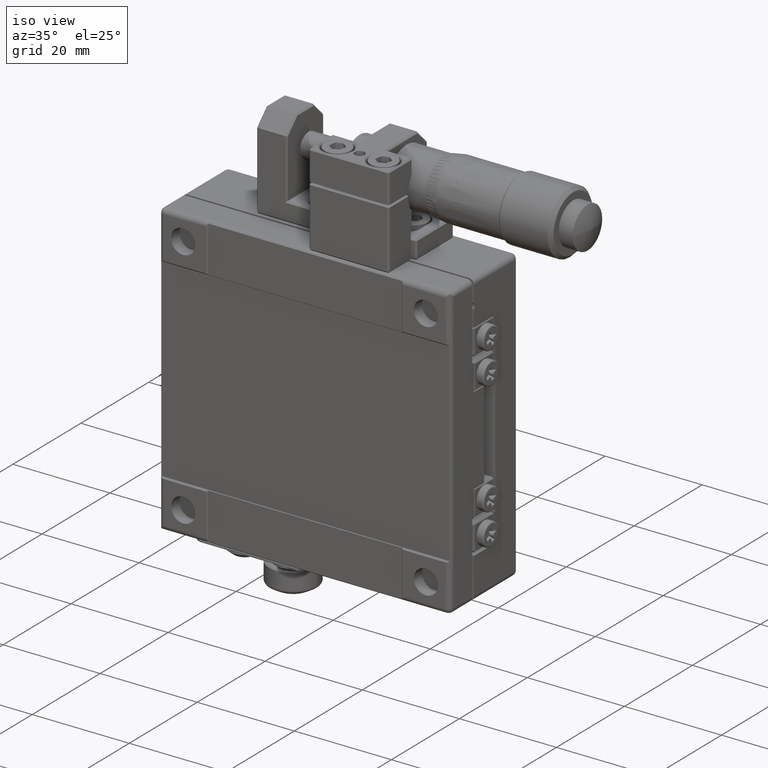
[diagram: clean part render]
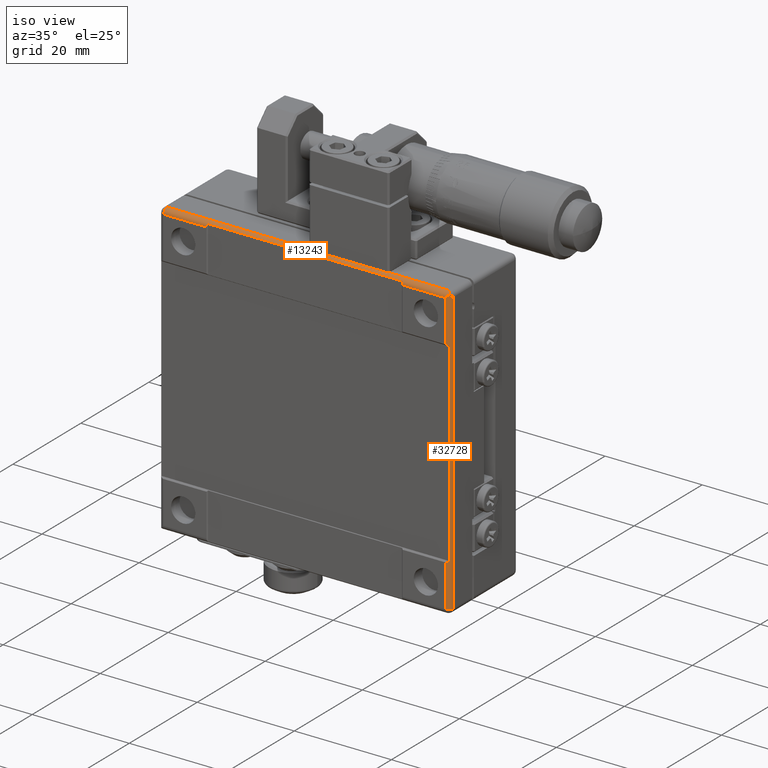
[diagram: same view with one multi-face feature highlighted, each face labeled with its STEP entity id]
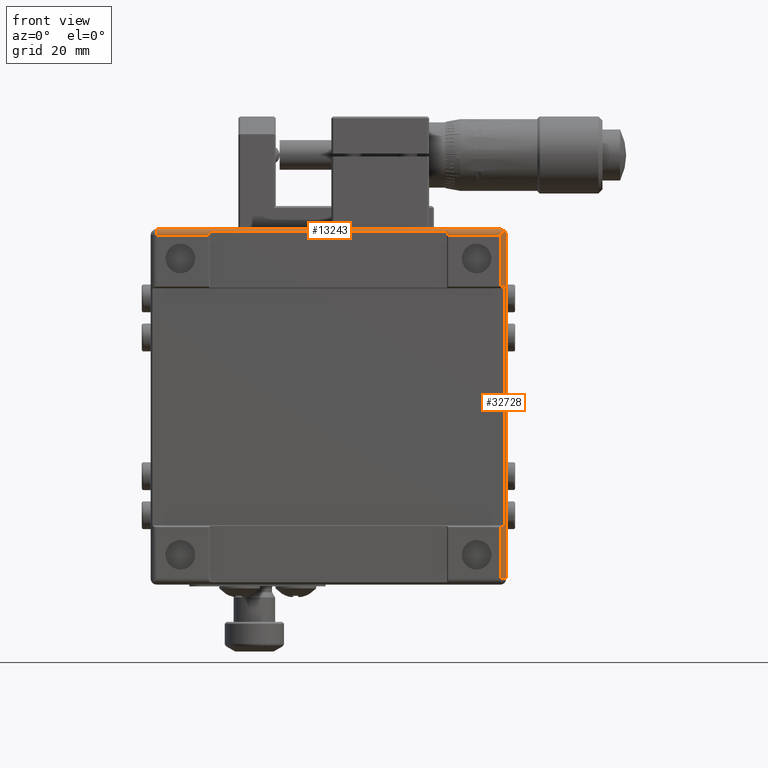
[diagram: same view with one multi-face feature highlighted, each face labeled with its STEP entity id]
A machine part, iso view. The highlighted faces form ONE feature: a constant-radius fillet chain: 2 tangent blend faces with common blend radius 1 mm. The faces share edges in the B-rep.
A second angle (front view) of the same feature is appended — it is thin or edge-on in the first view.
Their STEP definitions:
[1] entity #32728 (Cylinder):
#450 =( BOUNDED_CURVE ( )  B_SPLINE_CURVE ( 3, ( #6120, #52358, #14209, #6379 ),
 .UNSPECIFIED., .F., .T. ) 
 B_SPLINE_CURVE_WITH_KNOTS ( ( 4, 4 ),
 ( 3.926990816987240063, 4.712388980384689674 ),
 .UNSPECIFIED. ) 
 CURVE ( )  GEOMETRIC_REPRESENTATION_ITEM ( )  RATIONAL_B_SPLINE_CURVE ( ( 1.000000000000000000, 0.9492530216741910110, 0.9492530216741910110, 1.000000000000000000 ) ) 
 REPRESENTATION_ITEM ( '' )  );
#757 = LINE ( 'NONE', #9100, #16995 ) ;
#1023 = DIRECTION ( 'NONE',  ( 0.000000000000000000, 4.678643490962819868E-17, 1.000000000000000000 ) ) ;
#1397 = DIRECTION ( 'NONE',  ( 1.000000000000000000, 0.000000000000000000, 0.000000000000000000 ) ) ;
#1776 = VERTEX_POINT ( 'NONE', #12703 ) ;
#1814 = CARTESIAN_POINT ( 'NONE',  ( 30.37353433835844996, -10.39363484087102130, 24.64999999999999858 ) ) ;
#5026 = CARTESIAN_POINT ( 'NONE',  ( 30.64590476188642043, -10.39363484087103018, -20.30000000000000071 ) ) ;
#5035 = DIRECTION ( 'NONE',  ( 0.000000000000000000, 4.678643490962819868E-17, 1.000000000000000000 ) ) ;
#6120 = CARTESIAN_POINT ( 'NONE',  ( 31.08064111954500319, -10.10074162205756032, 29.70710678118654968 ) ) ;
#6379 = CARTESIAN_POINT ( 'NONE',  ( 31.37353433835844640, -9.393634840871019520, 29.00000000000000000 ) ) ;
#6687 = ORIENTED_EDGE ( 'NONE', *, *, #41910, .F. ) ;
#6949 =( BOUNDED_CURVE ( )  B_SPLINE_CURVE ( 3, ( #43692, #22540, #18372, #27266 ),
 .UNSPECIFIED., .F., .T. ) 
 B_SPLINE_CURVE_WITH_KNOTS ( ( 4, 4 ),
 ( 1.570796326794895004, 2.356194490192344837 ),
 .UNSPECIFIED. ) 
 CURVE ( )  GEOMETRIC_REPRESENTATION_ITEM ( )  RATIONAL_B_SPLINE_CURVE ( ( 1.000000000000000000, 0.9492530216741910110, 0.9492530216741910110, 1.000000000000000000 ) ) 
 REPRESENTATION_ITEM ( '' )  );
#6951 = CARTESIAN_POINT ( 'NONE',  ( 31.08064111954500319, -10.10074162205756032, 29.70710678118654968 ) ) ;
#7042 = ORIENTED_EDGE ( 'NONE', *, *, #49805, .T. ) ;
#8111 = VECTOR ( 'NONE', #5035, 1000.000000000000000 ) ;
#8354 = CARTESIAN_POINT ( 'NONE',  ( 31.08767718121274726, -10.09363484087102059, -20.00000000000000000 ) ) ;
#9100 = CARTESIAN_POINT ( 'NONE',  ( 30.37353433835844996, -10.39363484087102130, -20.29999999999999716 ) ) ;
#9840 = EDGE_CURVE ( 'NONE', #1776, #30187, #42429, .T. ) ;
#10680 = CARTESIAN_POINT ( 'NONE',  ( 30.37353433835844996, -10.39363484087102130, 20.29999999999999716 ) ) ;
#10759 = ORIENTED_EDGE ( 'NONE', *, *, #35876, .F. ) ;
#12564 = CARTESIAN_POINT ( 'NONE',  ( 31.08767718121274726, -10.09363484087102059, 20.00000000000000000 ) ) ;
#12703 = CARTESIAN_POINT ( 'NONE',  ( 30.37353433835844996, -10.39363484087102130, -20.29999999999999716 ) ) ;
#13242 = VERTEX_POINT ( 'NONE', #10680 ) ;
#13359 = LINE ( 'NONE', #26181, #8111 ) ;
#14209 = CARTESIAN_POINT ( 'NONE',  ( 31.37353433835845351, -9.662395942935711801, 29.26876110206470827 ) ) ;
#14305 = CARTESIAN_POINT ( 'NONE',  ( 30.37353433835844996, -10.39363484087102130, 29.00000000000000000 ) ) ;
#14704 = EDGE_CURVE ( 'NONE', #51663, #39371, #450, .T. ) ;
#14920 = LINE ( 'NONE', #1814, #20771 ) ;
#14973 = VECTOR ( 'NONE', #50606, 1000.000000000000000 ) ;
#15474 = CYLINDRICAL_SURFACE ( 'NONE', #25446, 1.000000000000000888 ) ;
#16748 = EDGE_LOOP ( 'NONE', ( #18450, #35369, #7042, #10759, #17995, #6687, #36198, #31444, #39037 ) ) ;
#16995 = VECTOR ( 'NONE', #1023, 1000.000000000000000 ) ;
#17142 = CIRCLE ( 'NONE', #52710, 0.9999999999999974465 ) ;
#17995 = ORIENTED_EDGE ( 'NONE', *, *, #14704, .F. ) ;
#18372 = CARTESIAN_POINT ( 'NONE',  ( 30.89059832175586351, -10.29078441984666981, 29.51706398339743487 ) ) ;
#18450 = ORIENTED_EDGE ( 'NONE', *, *, #9840, .F. ) ;
#18572 = DIRECTION ( 'NONE',  ( 0.000000000000000000, -1.000000000000000000, 0.000000000000000000 ) ) ;
#18813 = DIRECTION ( 'NONE',  ( 0.000000000000000000, 4.678643490962819868E-17, 1.000000000000000000 ) ) ;
#20771 = VECTOR ( 'NONE', #18813, 1000.000000000000000 ) ;
#21489 = CARTESIAN_POINT ( 'NONE',  ( 30.37353433835844996, -10.39363484087102130, 20.29999999999999716 ) ) ;
#21937 = LINE ( 'NONE', #33618, #14973 ) ;
#22540 = CARTESIAN_POINT ( 'NONE',  ( 30.64229544042313691, -10.39363484087101419, 29.26876110206470827 ) ) ;
#22972 = CARTESIAN_POINT ( 'NONE',  ( 31.37353433835844640, -9.393634840871030178, -29.00000000000000000 ) ) ;
#25059 = EDGE_CURVE ( 'NONE', #51138, #1776, #757, .T. ) ;
#25446 = AXIS2_PLACEMENT_3D ( 'NONE', #32460, #36361, #18572 ) ;
#26181 = CARTESIAN_POINT ( 'NONE',  ( 31.08767718121274726, -10.09363484087102059, -20.00000000000000000 ) ) ;
#27266 = CARTESIAN_POINT ( 'NONE',  ( 31.08064111954500319, -10.10074162205756032, 29.70710678118654968 ) ) ;
#29570 = CARTESIAN_POINT ( 'NONE',  ( 30.89701788474322441, -10.28814622943870738, 20.19451138856768324 ) ) ;
#30187 = VERTEX_POINT ( 'NONE', #45253 ) ;
#31444 = ORIENTED_EDGE ( 'NONE', *, *, #34308, .F. ) ;
#32460 = CARTESIAN_POINT ( 'NONE',  ( 30.37353433835844996, -9.393634840871019520, 30.00000000000000000 ) ) ;
#32728 = ADVANCED_FACE ( 'NONE', ( #35810 ), #15474, .T. ) ;
#33618 = CARTESIAN_POINT ( 'NONE',  ( 31.37353433835844640, -9.393634840871030178, -29.00000000000000000 ) ) ;
#33838 = CARTESIAN_POINT ( 'NONE',  ( 30.37353433835844996, -10.39363484087102130, -29.00000000000000000 ) ) ;
#34308 = EDGE_CURVE ( 'NONE', #37573, #13242, #47133, .T. ) ;
#34742 = VERTEX_POINT ( 'NONE', #14305 ) ;
#35369 = ORIENTED_EDGE ( 'NONE', *, *, #25059, .F. ) ;
#35810 = FACE_OUTER_BOUND ( 'NONE', #16748, .T. ) ;
#35876 = EDGE_CURVE ( 'NONE', #39371, #54857, #21937, .T. ) ;
#36198 = ORIENTED_EDGE ( 'NONE', *, *, #43603, .F. ) ;
#36361 = DIRECTION ( 'NONE',  ( 0.000000000000000000, 0.000000000000000000, 1.000000000000000000 ) ) ;
#37573 = VERTEX_POINT ( 'NONE', #51653 ) ;
#39010 = CARTESIAN_POINT ( 'NONE',  ( 30.37353433835844996, -9.393634840871030178, -29.00000000000000000 ) ) ;
#39037 = ORIENTED_EDGE ( 'NONE', *, *, #47964, .F. ) ;
#39371 = VERTEX_POINT ( 'NONE', #40861 ) ;
#39543 = DIRECTION ( 'NONE',  ( 0.000000000000000000, 0.000000000000000000, 1.000000000000000000 ) ) ;
#40861 = CARTESIAN_POINT ( 'NONE',  ( 31.37353433835844640, -9.393634840871019520, 29.00000000000000000 ) ) ;
#41910 = EDGE_CURVE ( 'NONE', #34742, #51663, #6949, .T. ) ;
#42429 =( BOUNDED_CURVE ( )  B_SPLINE_CURVE ( 3, ( #50672, #5026, #43174, #8354 ),
 .UNSPECIFIED., .F., .T. ) 
 B_SPLINE_CURVE_WITH_KNOTS ( ( 4, 4 ),
 ( 3.141592653589795336, 3.936991483773935041 ),
 .UNSPECIFIED. ) 
 CURVE ( )  GEOMETRIC_REPRESENTATION_ITEM ( )  RATIONAL_B_SPLINE_CURVE ( ( 1.000000000000000000, 0.9479696304861919831, 0.9479696304861919831, 1.000000000000000000 ) ) 
 REPRESENTATION_ITEM ( '' )  );
#42659 = CARTESIAN_POINT ( 'NONE',  ( 30.64590476188642043, -10.39363484087103018, 20.30000000000000071 ) ) ;
#43174 = CARTESIAN_POINT ( 'NONE',  ( 30.89701788474322441, -10.28814622943870738, -20.19451138856768324 ) ) ;
#43603 = EDGE_CURVE ( 'NONE', #13242, #34742, #14920, .T. ) ;
#43692 = CARTESIAN_POINT ( 'NONE',  ( 30.37353433835844996, -10.39363484087102130, 29.00000000000000000 ) ) ;
#45253 = CARTESIAN_POINT ( 'NONE',  ( 31.08767718121274726, -10.09363484087102059, -20.00000000000000000 ) ) ;
#47133 =( BOUNDED_CURVE ( )  B_SPLINE_CURVE ( 3, ( #12564, #29570, #42659, #21489 ),
 .UNSPECIFIED., .F., .T. ) 
 B_SPLINE_CURVE_WITH_KNOTS ( ( 4, 4 ),
 ( 5.487786476995439422, 6.283185307179590673 ),
 .UNSPECIFIED. ) 
 CURVE ( )  GEOMETRIC_REPRESENTATION_ITEM ( )  RATIONAL_B_SPLINE_CURVE ( ( 1.000000000000000000, 0.9479696304861919831, 0.9479696304861919831, 1.000000000000000000 ) ) 
 REPRESENTATION_ITEM ( '' )  );
#47964 = EDGE_CURVE ( 'NONE', #30187, #37573, #13359, .T. ) ;
#49805 = EDGE_CURVE ( 'NONE', #51138, #54857, #17142, .T. ) ;
#50606 = DIRECTION ( 'NONE',  ( 0.000000000000000000, -4.678643490962819868E-17, -1.000000000000000000 ) ) ;
#50672 = CARTESIAN_POINT ( 'NONE',  ( 30.37353433835844996, -10.39363484087102130, -20.29999999999999716 ) ) ;
#51138 = VERTEX_POINT ( 'NONE', #33838 ) ;
#51653 = CARTESIAN_POINT ( 'NONE',  ( 31.08767718121274726, -10.09363484087102059, 20.00000000000000000 ) ) ;
#51663 = VERTEX_POINT ( 'NONE', #6951 ) ;
#52358 = CARTESIAN_POINT ( 'NONE',  ( 31.27068391733412511, -9.910698824268449059, 29.51706398339743487 ) ) ;
#52710 = AXIS2_PLACEMENT_3D ( 'NONE', #39010, #39543, #1397 ) ;
#54857 = VERTEX_POINT ( 'NONE', #22972 ) ;
[2] entity #13243 (Cylinder):
#383 = VERTEX_POINT ( 'NONE', #1073 ) ;
#569 = VERTEX_POINT ( 'NONE', #9090 ) ;
#681 = ORIENTED_EDGE ( 'NONE', *, *, #36954, .F. ) ;
#875 = CARTESIAN_POINT ( 'NONE',  ( -18.82646566164153157, -10.39363484087101597, 29.21828633383316998 ) ) ;
#1073 = CARTESIAN_POINT ( 'NONE',  ( 18.07353433835844925, -9.393634840871019520, 30.00000000000000000 ) ) ;
#2132 = VECTOR ( 'NONE', #27496, 1000.000000000000000 ) ;
#2416 = EDGE_CURVE ( 'NONE', #4835, #31603, #51368, .T. ) ;
#3227 = DIRECTION ( 'NONE',  ( -1.000000000000000000, 0.000000000000000000, 0.000000000000000000 ) ) ;
#4227 = CARTESIAN_POINT ( 'NONE',  ( -27.62646566164155004, -10.39363484087102130, 29.00000000000000000 ) ) ;
#4642 = CARTESIAN_POINT ( 'NONE',  ( 31.08064111954500319, -10.10074162205756032, 29.70710678118654968 ) ) ;
#4835 = VERTEX_POINT ( 'NONE', #30102 ) ;
#4933 = CIRCLE ( 'NONE', #50284, 1.000000000000000888 ) ;
#5073 = CARTESIAN_POINT ( 'NONE',  ( -18.62646566164155360, -10.19363484087102023, 29.60000000000000142 ) ) ;
#6132 =( BOUNDED_CURVE ( )  B_SPLINE_CURVE ( 3, ( #5073, #39295, #875, #22604 ),
 .UNSPECIFIED., .F., .T. ) 
 B_SPLINE_CURVE_WITH_KNOTS ( ( 4, 4 ),
 ( 5.639684198386309966, 6.283185307179590673 ),
 .UNSPECIFIED. ) 
 CURVE ( )  GEOMETRIC_REPRESENTATION_ITEM ( )  RATIONAL_B_SPLINE_CURVE ( ( 1.000000000000000000, 0.9657888653670100298, 0.9657888653670100298, 1.000000000000000000 ) ) 
 REPRESENTATION_ITEM ( '' )  );
#6505 = EDGE_CURVE ( 'NONE', #34742, #4835, #43940, .T. ) ;
#6949 =( BOUNDED_CURVE ( )  B_SPLINE_CURVE ( 3, ( #43692, #22540, #18372, #27266 ),
 .UNSPECIFIED., .F., .T. ) 
 B_SPLINE_CURVE_WITH_KNOTS ( ( 4, 4 ),
 ( 1.570796326794895004, 2.356194490192344837 ),
 .UNSPECIFIED. ) 
 CURVE ( )  GEOMETRIC_REPRESENTATION_ITEM ( )  RATIONAL_B_SPLINE_CURVE ( ( 1.000000000000000000, 0.9492530216741910110, 0.9492530216741910110, 1.000000000000000000 ) ) 
 REPRESENTATION_ITEM ( '' )  );
#6951 = CARTESIAN_POINT ( 'NONE',  ( 31.08064111954500319, -10.10074162205756032, 29.70710678118654968 ) ) ;
#7883 = VERTEX_POINT ( 'NONE', #14293 ) ;
#8212 = EDGE_CURVE ( 'NONE', #569, #38611, #17031, .T. ) ;
#8251 = EDGE_CURVE ( 'NONE', #569, #28131, #4933, .T. ) ;
#9090 = CARTESIAN_POINT ( 'NONE',  ( -27.62646566164155004, -9.393634840871019520, 30.00000000000000000 ) ) ;
#9222 = CARTESIAN_POINT ( 'NONE',  ( -18.82646566164155288, -10.39363484087102130, 29.00000000000000000 ) ) ;
#9229 = DIRECTION ( 'NONE',  ( 0.000000000000000000, 0.000000000000000000, -1.000000000000000000 ) ) ;
#9642 = CARTESIAN_POINT ( 'NONE',  ( 30.89059832175588838, -9.910698824268450835, 29.89714957897566450 ) ) ;
#10982 = ORIENTED_EDGE ( 'NONE', *, *, #14765, .F. ) ;
#11251 = FACE_OUTER_BOUND ( 'NONE', #45939, .T. ) ;
#12611 = DIRECTION ( 'NONE',  ( 0.000000000000000000, 0.000000000000000000, 1.000000000000000000 ) ) ;
#12982 = VECTOR ( 'NONE', #24773, 1000.000000000000000 ) ;
#13148 = DIRECTION ( 'NONE',  ( 1.000000000000000000, 0.000000000000000000, 0.000000000000000000 ) ) ;
#13243 = ADVANCED_FACE ( 'NONE', ( #11251 ), #27686, .T. ) ;
#14293 = CARTESIAN_POINT ( 'NONE',  ( -18.62646566164155360, -10.19363484087102023, 29.60000000000000142 ) ) ;
#14305 = CARTESIAN_POINT ( 'NONE',  ( 30.37353433835844996, -10.39363484087102130, 29.00000000000000000 ) ) ;
#14713 = CARTESIAN_POINT ( 'NONE',  ( 21.57353433835844569, -10.39363484087102130, 29.00000000000000000 ) ) ;
#14765 = EDGE_CURVE ( 'NONE', #39004, #28131, #45100, .T. ) ;
#14921 = CARTESIAN_POINT ( 'NONE',  ( 21.37353433835844996, -10.19363484087102023, 29.60000000000000142 ) ) ;
#17031 = LINE ( 'NONE', #51303, #45829 ) ;
#17376 = DIRECTION ( 'NONE',  ( 1.000000000000000000, 0.000000000000000000, 0.000000000000000000 ) ) ;
#17777 = CARTESIAN_POINT ( 'NONE',  ( 26.47353433835844783, -10.39363484087102130, 29.00000000000000000 ) ) ;
#18372 = CARTESIAN_POINT ( 'NONE',  ( 30.89059832175586351, -10.29078441984666981, 29.51706398339743487 ) ) ;
#19177 = CARTESIAN_POINT ( 'NONE',  ( 21.57353433835844214, -10.39363484087100353, 29.21828633383319129 ) ) ;
#19282 = EDGE_CURVE ( 'NONE', #38611, #383, #30441, .T. ) ;
#19478 = ORIENTED_EDGE ( 'NONE', *, *, #22032, .F. ) ;
#20663 = LINE ( 'NONE', #37633, #47652 ) ;
#20964 = CARTESIAN_POINT ( 'NONE',  ( -27.62646566164155004, -9.393634840871019520, 29.00000000000000000 ) ) ;
#21199 = EDGE_CURVE ( 'NONE', #383, #49326, #20663, .T. ) ;
#21546 = CARTESIAN_POINT ( 'NONE',  ( 31.37353433835844640, -9.393634840871019520, 30.00000000000000000 ) ) ;
#22032 = EDGE_CURVE ( 'NONE', #7883, #39004, #6132, .T. ) ;
#22035 = ORIENTED_EDGE ( 'NONE', *, *, #8212, .F. ) ;
#22540 = CARTESIAN_POINT ( 'NONE',  ( 30.64229544042313691, -10.39363484087101419, 29.26876110206470827 ) ) ;
#22604 = CARTESIAN_POINT ( 'NONE',  ( -18.82646566164155288, -10.39363484087102130, 29.00000000000000000 ) ) ;
#24773 = DIRECTION ( 'NONE',  ( -1.000000000000000000, 0.000000000000000000, 0.000000000000000000 ) ) ;
#25010 =( BOUNDED_CURVE ( )  B_SPLINE_CURVE ( 3, ( #38327, #26376, #9642, #4642 ),
 .UNSPECIFIED., .F., .T. ) 
 B_SPLINE_CURVE_WITH_KNOTS ( ( 4, 4 ),
 ( 1.570796326794895004, 2.356194490192339952 ),
 .UNSPECIFIED. ) 
 CURVE ( )  GEOMETRIC_REPRESENTATION_ITEM ( )  RATIONAL_B_SPLINE_CURVE ( ( 1.000000000000000000, 0.9492530216741920102, 0.9492530216741920102, 1.000000000000000000 ) ) 
 REPRESENTATION_ITEM ( '' )  );
#25839 = ORIENTED_EDGE ( 'NONE', *, *, #41910, .T. ) ;
#26376 = CARTESIAN_POINT ( 'NONE',  ( 30.64229544042315823, -9.662395942935702919, 29.99999999999998934 ) ) ;
#27266 = CARTESIAN_POINT ( 'NONE',  ( 31.08064111954500319, -10.10074162205756032, 29.70710678118654968 ) ) ;
#27496 = DIRECTION ( 'NONE',  ( -1.000000000000000000, 0.000000000000000000, 0.000000000000000000 ) ) ;
#27686 = CYLINDRICAL_SURFACE ( 'NONE', #48492, 1.000000000000000888 ) ;
#28131 = VERTEX_POINT ( 'NONE', #4227 ) ;
#28851 = CARTESIAN_POINT ( 'NONE',  ( 21.37353433835844996, -10.19363484087102023, 29.60000000000000142 ) ) ;
#29847 = ORIENTED_EDGE ( 'NONE', *, *, #30026, .F. ) ;
#30026 = EDGE_CURVE ( 'NONE', #49326, #51663, #25010, .T. ) ;
#30102 = CARTESIAN_POINT ( 'NONE',  ( 21.57353433835844569, -10.39363484087102130, 29.00000000000000000 ) ) ;
#30312 = VECTOR ( 'NONE', #3227, 1000.000000000000000 ) ;
#30390 = DIRECTION ( 'NONE',  ( 1.000000000000000000, 0.000000000000000000, 0.000000000000000000 ) ) ;
#30441 = LINE ( 'NONE', #21546, #33443 ) ;
#31603 = VERTEX_POINT ( 'NONE', #14921 ) ;
#31994 = CARTESIAN_POINT ( 'NONE',  ( 31.37353433835844640, -10.39363484087102130, 29.00000000000000000 ) ) ;
#33443 = VECTOR ( 'NONE', #17376, 1000.000000000000000 ) ;
#33771 = ORIENTED_EDGE ( 'NONE', *, *, #2416, .F. ) ;
#34742 = VERTEX_POINT ( 'NONE', #14305 ) ;
#34749 = ORIENTED_EDGE ( 'NONE', *, *, #8251, .T. ) ;
#36954 = EDGE_CURVE ( 'NONE', #31603, #7883, #49985, .T. ) ;
#37633 = CARTESIAN_POINT ( 'NONE',  ( 31.37353433835844640, -9.393634840871019520, 30.00000000000000000 ) ) ;
#38327 = CARTESIAN_POINT ( 'NONE',  ( 30.37353433835844996, -9.393634840871019520, 30.00000000000000000 ) ) ;
#38611 = VERTEX_POINT ( 'NONE', #43954 ) ;
#39004 = VERTEX_POINT ( 'NONE', #9222 ) ;
#39295 = CARTESIAN_POINT ( 'NONE',  ( -18.75743746194147121, -10.32460664117094318, 29.42537093293345762 ) ) ;
#39407 = ORIENTED_EDGE ( 'NONE', *, *, #19282, .F. ) ;
#39634 = ORIENTED_EDGE ( 'NONE', *, *, #6505, .F. ) ;
#41910 = EDGE_CURVE ( 'NONE', #34742, #51663, #6949, .T. ) ;
#43692 = CARTESIAN_POINT ( 'NONE',  ( 30.37353433835844996, -10.39363484087102130, 29.00000000000000000 ) ) ;
#43940 = LINE ( 'NONE', #17777, #2132 ) ;
#43954 = CARTESIAN_POINT ( 'NONE',  ( 2.173534338358470208, -9.393634840871019520, 30.00000000000000000 ) ) ;
#45100 = LINE ( 'NONE', #31994, #12982 ) ;
#45231 = CARTESIAN_POINT ( 'NONE',  ( 31.37353433835844640, -9.393634840871019520, 29.00000000000000000 ) ) ;
#45791 = DIRECTION ( 'NONE',  ( -1.000000000000000000, 0.000000000000000000, 0.000000000000000000 ) ) ;
#45829 = VECTOR ( 'NONE', #13148, 1000.000000000000000 ) ;
#45939 = EDGE_LOOP ( 'NONE', ( #39634, #25839, #29847, #51582, #39407, #22035, #34749, #10982, #19478, #681, #33771 ) ) ;
#46882 = CARTESIAN_POINT ( 'NONE',  ( 30.37353433835844996, -9.393634840871019520, 30.00000000000000000 ) ) ;
#47652 = VECTOR ( 'NONE', #54612, 1000.000000000000000 ) ;
#48492 = AXIS2_PLACEMENT_3D ( 'NONE', #45231, #45791, #12611 ) ;
#48937 = CARTESIAN_POINT ( 'NONE',  ( 21.50450613865837823, -10.32460664117094318, 29.42537093293342565 ) ) ;
#49326 = VERTEX_POINT ( 'NONE', #46882 ) ;
#49985 = LINE ( 'NONE', #28851, #30312 ) ;
#50284 = AXIS2_PLACEMENT_3D ( 'NONE', #20964, #30390, #9229 ) ;
#51303 = CARTESIAN_POINT ( 'NONE',  ( 31.37353433835844640, -9.393634840871019520, 30.00000000000000000 ) ) ;
#51368 =( BOUNDED_CURVE ( )  B_SPLINE_CURVE ( 3, ( #14713, #19177, #48937, #53660 ),
 .UNSPECIFIED., .F., .T. ) 
 B_SPLINE_CURVE_WITH_KNOTS ( ( 4, 4 ),
 ( 3.141592653589795336, 3.785093762383060056 ),
 .UNSPECIFIED. ) 
 CURVE ( )  GEOMETRIC_REPRESENTATION_ITEM ( )  RATIONAL_B_SPLINE_CURVE ( ( 1.000000000000000000, 0.9657888653670110291, 0.9657888653670110291, 1.000000000000000000 ) ) 
 REPRESENTATION_ITEM ( '' )  );
#51582 = ORIENTED_EDGE ( 'NONE', *, *, #21199, .F. ) ;
#51663 = VERTEX_POINT ( 'NONE', #6951 ) ;
#53660 = CARTESIAN_POINT ( 'NONE',  ( 21.37353433835844996, -10.19363484087102023, 29.60000000000000142 ) ) ;
#54612 = DIRECTION ( 'NONE',  ( 1.000000000000000000, 0.000000000000000000, 0.000000000000000000 ) ) ;